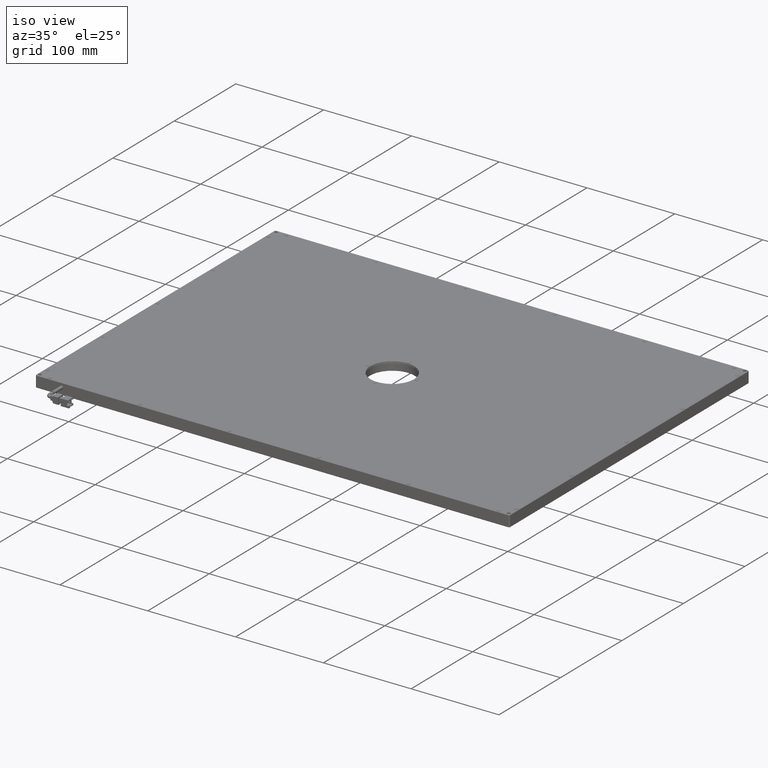
[diagram: clean part render]
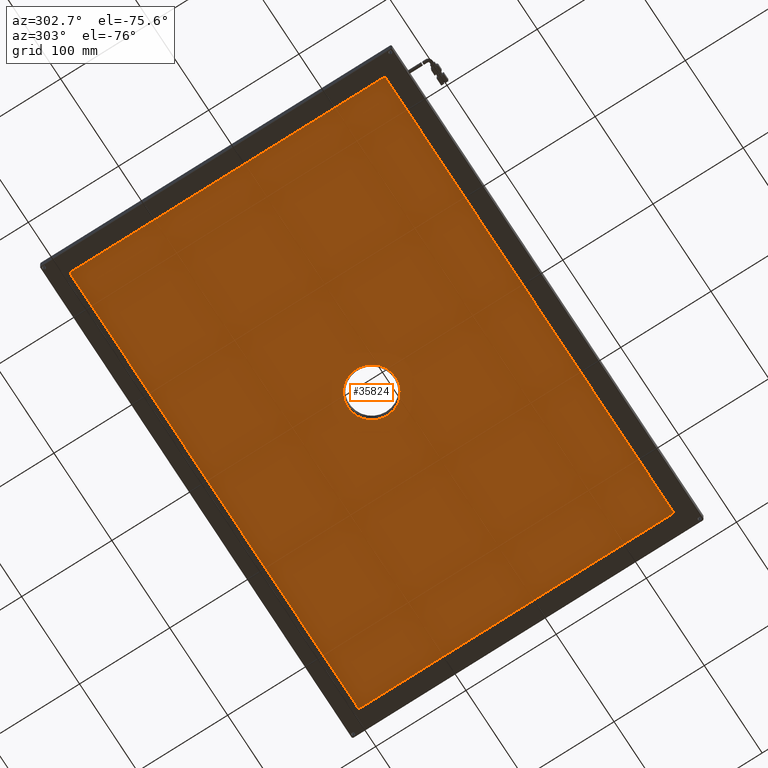
[diagram: tour spotlight — one face highlighted and labeled with its STEP entity id]
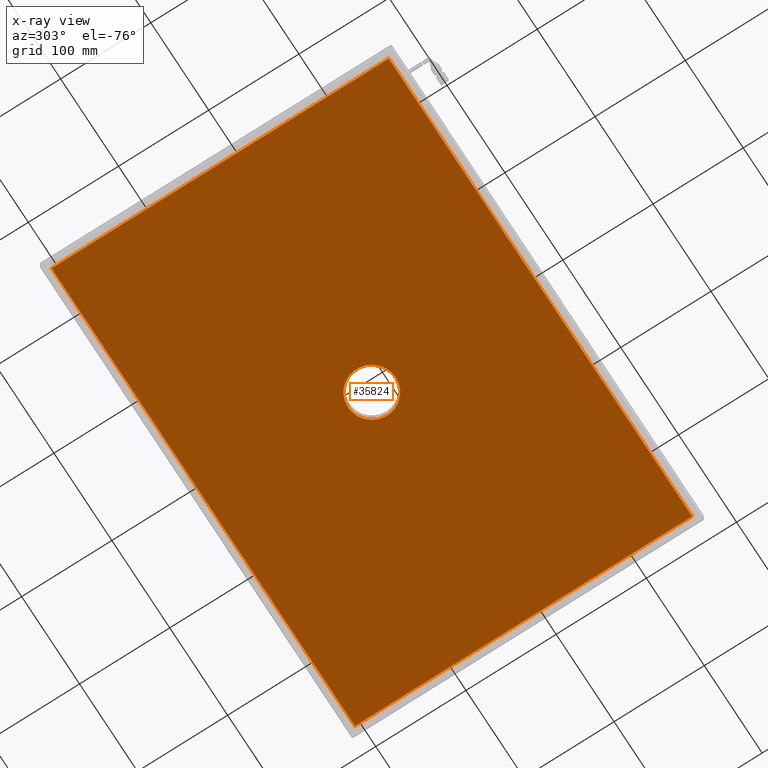
[diagram: x-ray of the same camera — body ghosted, this tour face saturated]
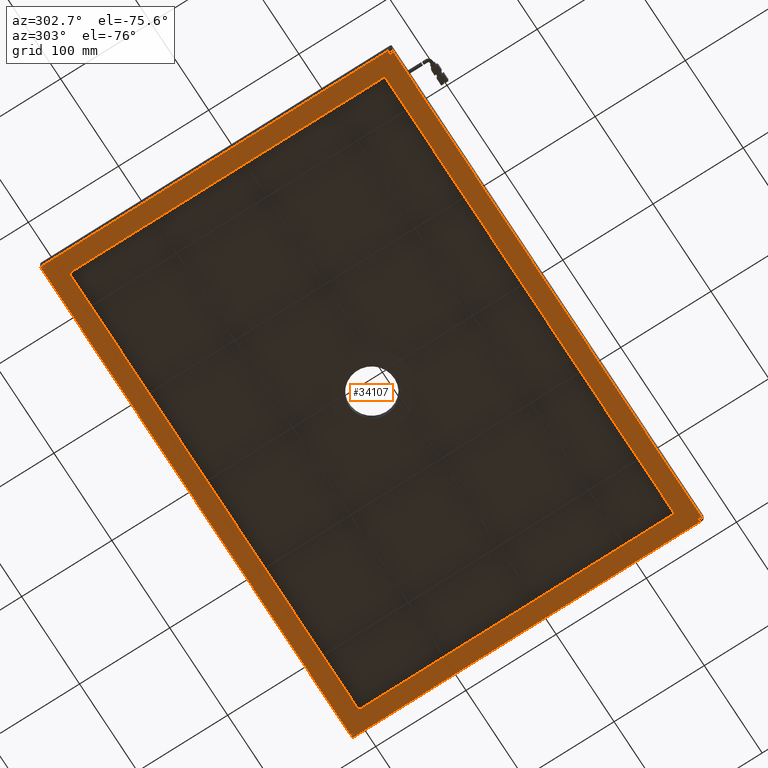
[diagram: tour spotlight — one face highlighted and labeled with its STEP entity id]
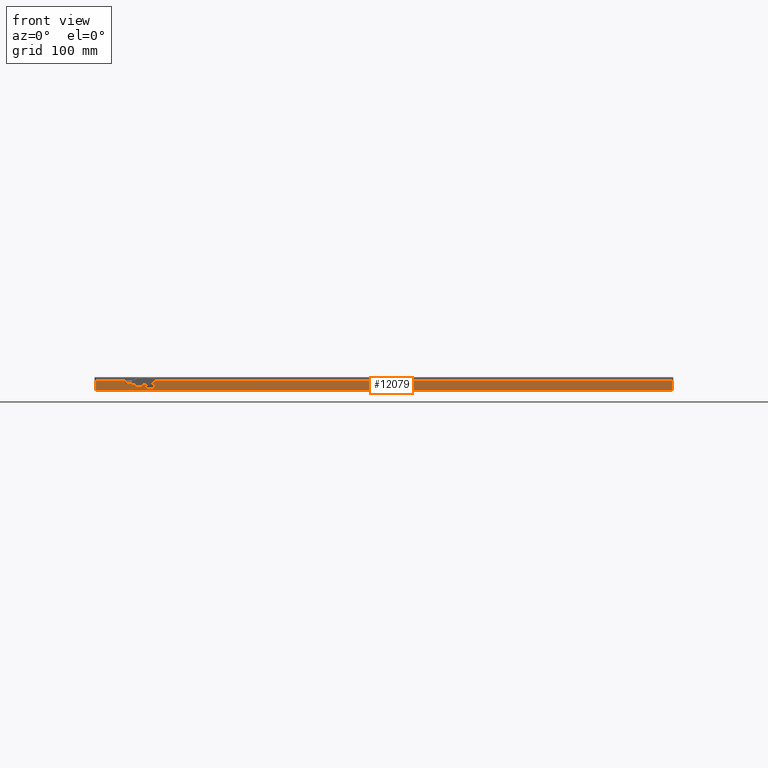
[diagram: tour spotlight — one face highlighted and labeled with its STEP entity id]
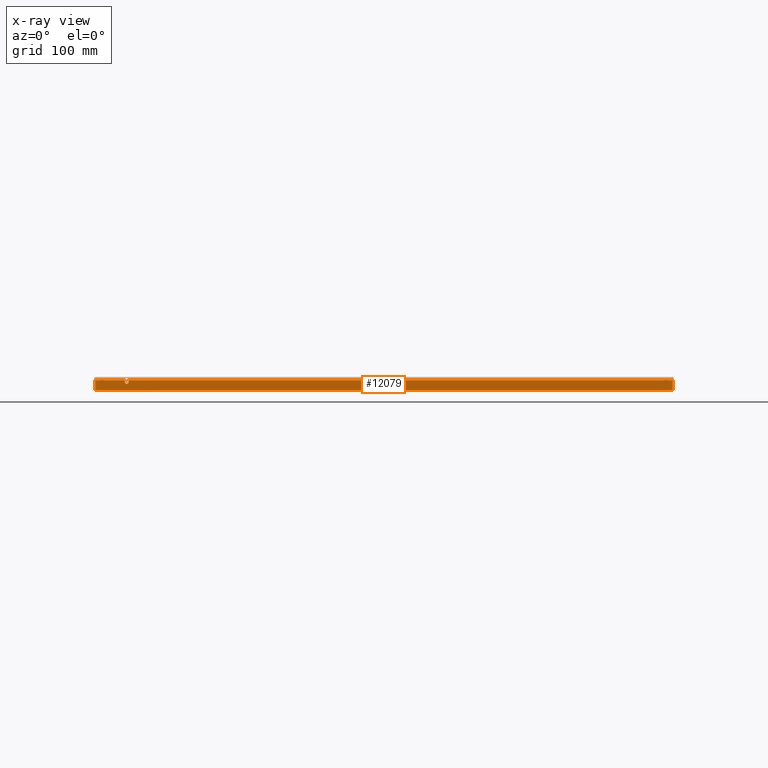
[diagram: x-ray of the same camera — body ghosted, this tour face saturated]
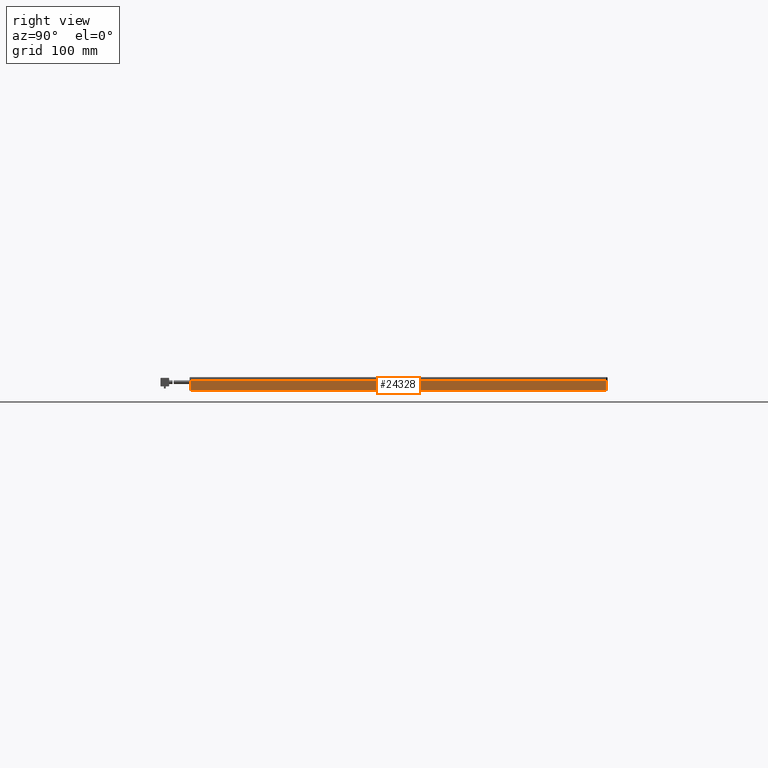
[diagram: tour spotlight — one face highlighted and labeled with its STEP entity id]
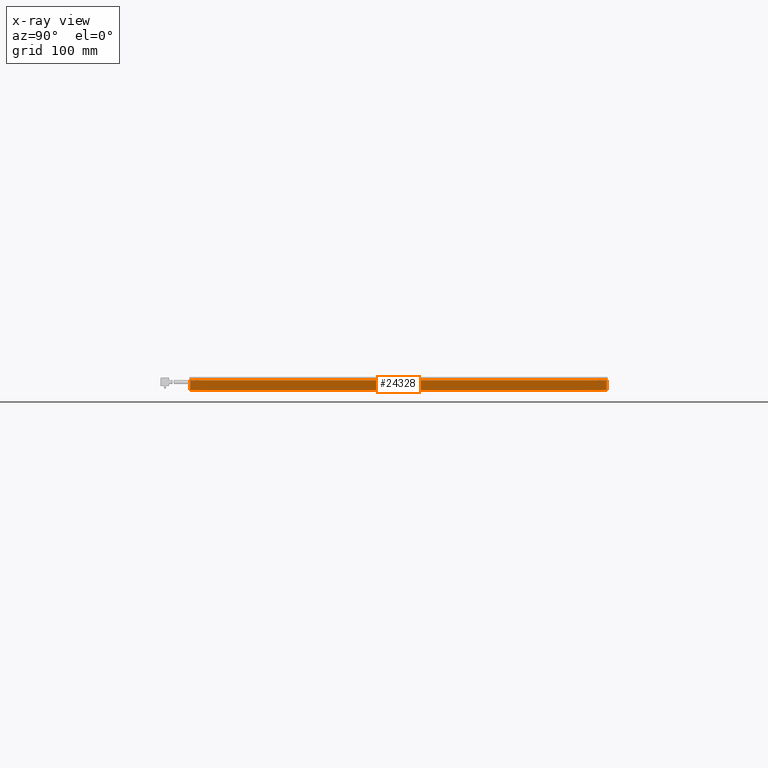
[diagram: x-ray of the same camera — body ghosted, this tour face saturated]
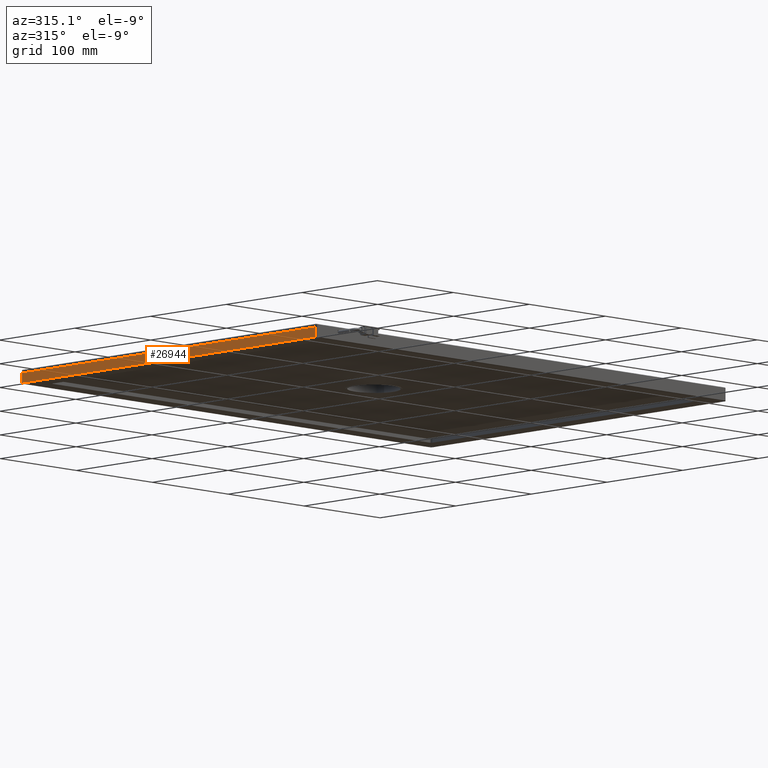
[diagram: tour spotlight — one face highlighted and labeled with its STEP entity id]
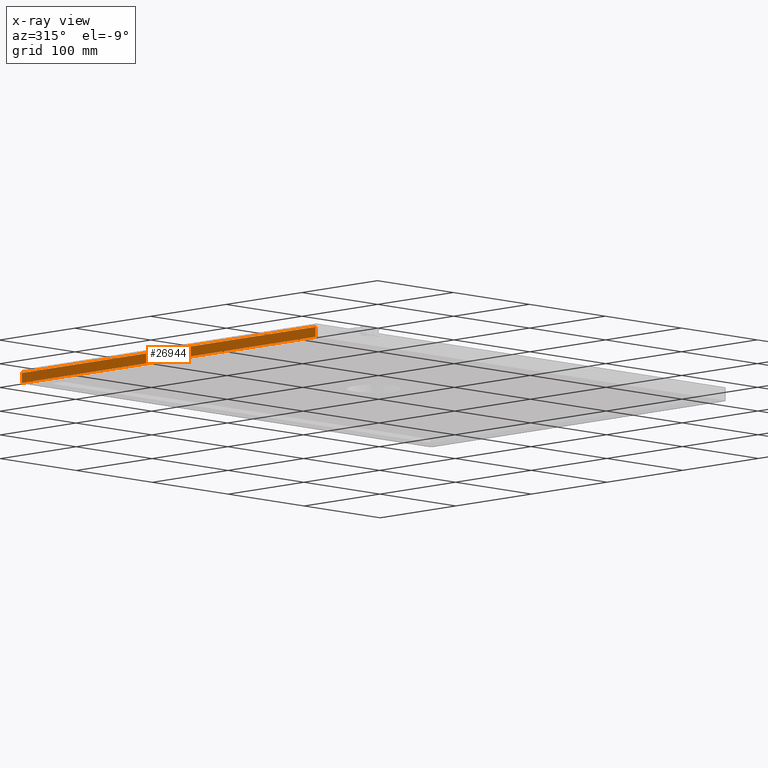
[diagram: x-ray of the same camera — body ghosted, this tour face saturated]
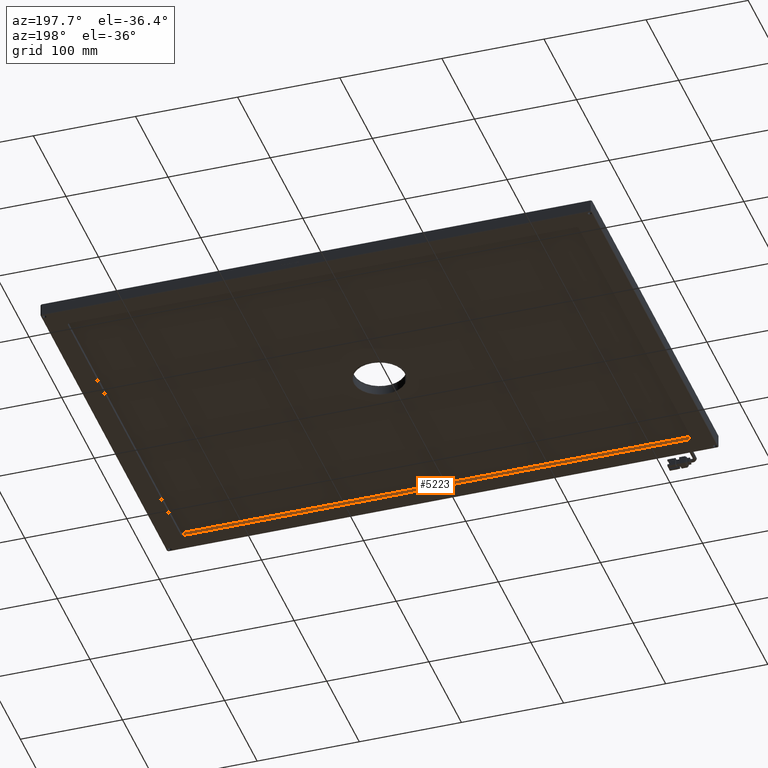
[diagram: tour spotlight — one face highlighted and labeled with its STEP entity id]
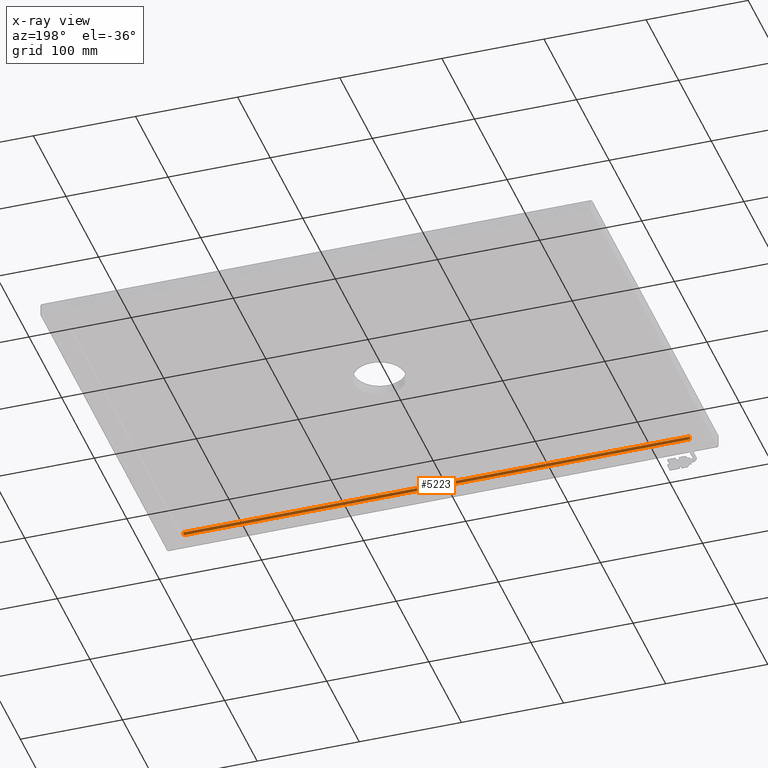
[diagram: x-ray of the same camera — body ghosted, this tour face saturated]
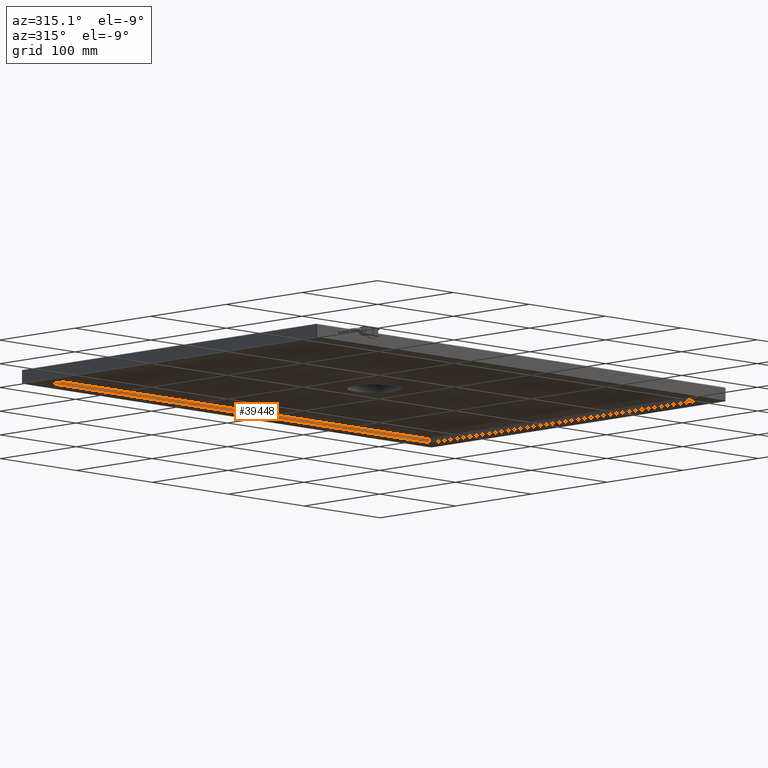
[diagram: tour spotlight — one face highlighted and labeled with its STEP entity id]
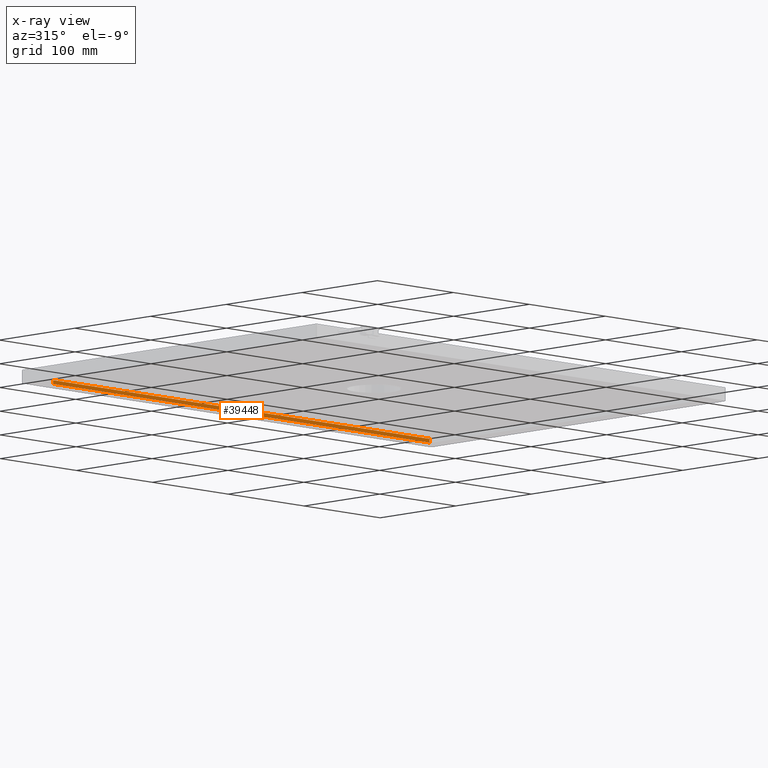
[diagram: x-ray of the same camera — body ghosted, this tour face saturated]
A machine part: a face-by-face anatomy tour. The part has 987 B-rep faces; the first image is the clean iso view, then the 7 largest visible faces are spotlighted one at a time (largest first), each with its STEP entity span.

Face 1 — auxiliary view, entity #35824. An x-ray twin of the same camera follows (body ghosted, this face saturated) — the face is partly hidden behind the body. In plain terms, the highlighted planar face has unit normal (0, 0, 1).
Definition (entity closure, byte-faithful):
#74 = DIRECTION ( 'NONE',  ( -6.546126324440780700E-017, -1.000000000000000000, 0.0000000000000000000 ) ) ;
#566 = PLANE ( 'NONE',  #31696 ) ;
#1430 = DIRECTION ( 'NONE',  ( 8.635563760980394900E-017, -1.000000000000000000, 1.240931981788380900E-018 ) ) ;
#2095 = VERTEX_POINT ( 'NONE', #13494 ) ;
#3767 = EDGE_CURVE ( 'NONE', #13105, #26332, #21936, .T. ) ;
#3987 = DIRECTION ( 'NONE',  ( 6.206990044168756900E-017, 1.000000000000000000, -1.240931981788380900E-018 ) ) ;
#4375 = ORIENTED_EDGE ( 'NONE', *, *, #3767, .T. ) ;
#4463 = AXIS2_PLACEMENT_3D ( 'NONE', #25818, #36872, #74 ) ;
#4845 = CARTESIAN_POINT ( 'NONE',  ( 13.94095595126540300, -5.787722586691565100, 3.500000000019098900 ) ) ;
#9698 = ORIENTED_EDGE ( 'NONE', *, *, #15598, .T. ) ;
#9917 = VERTEX_POINT ( 'NONE', #28113 ) ;
#10615 = VECTOR ( 'NONE', #1430, 1000.000000000000000 ) ;
#11948 = VECTOR ( 'NONE', #25629, 1000.000000000000000 ) ;
#12547 = EDGE_LOOP ( 'NONE', ( #9698, #18341, #23312, #37896 ) ) ;
#13021 = CARTESIAN_POINT ( 'NONE',  ( 13.94095595126540300, 47.21227741330844200, 3.500000000019098900 ) ) ;
#13105 = VERTEX_POINT ( 'NONE', #4845 ) ;
#13494 = CARTESIAN_POINT ( 'NONE',  ( -248.0590440487346200, -166.2877225866915600, 3.500000000019100700 ) ) ;
#13706 = CARTESIAN_POINT ( 'NONE',  ( -248.0590440487346200, -166.2877225866915600, 3.500000000019100700 ) ) ;
#14075 = ORIENTED_EDGE ( 'NONE', *, *, #39587, .T. ) ;
#14134 = CARTESIAN_POINT ( 'NONE',  ( 275.9409559512653200, 207.7122774133083900, 3.500000000019098500 ) ) ;
#15598 = EDGE_CURVE ( 'NONE', #2095, #19692, #33110, .T. ) ;
#16550 = VECTOR ( 'NONE', #31618, 1000.000000000000000 ) ;
#18232 = VERTEX_POINT ( 'NONE', #20219 ) ;
#18271 = AXIS2_PLACEMENT_3D ( 'NONE', #27060, #36580, #40317 ) ;
#18341 = ORIENTED_EDGE ( 'NONE', *, *, #20856, .T. ) ;
#18506 = CARTESIAN_POINT ( 'NONE',  ( 275.9409559512653200, 207.7122774133083900, 3.500000000019098500 ) ) ;
#19339 = LINE ( 'NONE', #14134, #10615 ) ;
#19692 = VERTEX_POINT ( 'NONE', #37949 ) ;
#20219 = CARTESIAN_POINT ( 'NONE',  ( 275.9409559512654400, 207.7122774133083900, 3.500000000019098900 ) ) ;
#20316 = DIRECTION ( 'NONE',  ( 2.692764026828979900E-033, 1.240931981788380900E-018, 1.000000000000000000 ) ) ;
#20856 = EDGE_CURVE ( 'NONE', #19692, #18232, #39166, .T. ) ;
#21239 = FACE_BOUND ( 'NONE', #41870, .T. ) ;
#21871 = CARTESIAN_POINT ( 'NONE',  ( 275.9409559512654400, -166.2877225866916100, 3.500000000019101200 ) ) ;
#21936 = CIRCLE ( 'NONE', #18271, 26.50000000000000400 ) ;
#23312 = ORIENTED_EDGE ( 'NONE', *, *, #26581, .T. ) ;
#25179 = CIRCLE ( 'NONE', #4463, 26.50000000000000400 ) ;
#25629 = DIRECTION ( 'NONE',  ( 1.000000000000000000, -6.206990044168760600E-017, -2.615739502264469000E-033 ) ) ;
#25818 = CARTESIAN_POINT ( 'NONE',  ( 13.94095595126540500, 20.71227741330843800, 3.500000000019098900 ) ) ;
#26332 = VERTEX_POINT ( 'NONE', #13021 ) ;
#26581 = EDGE_CURVE ( 'NONE', #18232, #9917, #19339, .T. ) ;
#27060 = CARTESIAN_POINT ( 'NONE',  ( 13.94095595126540500, 20.71227741330843800, 3.500000000019098900 ) ) ;
#28053 = EDGE_CURVE ( 'NONE', #9917, #2095, #34525, .T. ) ;
#28113 = CARTESIAN_POINT ( 'NONE',  ( 275.9409559512654400, -166.2877225866916100, 3.500000000019100300 ) ) ;
#29425 = FACE_OUTER_BOUND ( 'NONE', #12547, .T. ) ;
#31618 = DIRECTION ( 'NONE',  ( -1.000000000000000000, 6.206990044168760600E-017, 2.615739502264469000E-033 ) ) ;
#31696 = AXIS2_PLACEMENT_3D ( 'NONE', #13706, #20316, #3987 ) ;
#33110 = LINE ( 'NONE', #42238, #37714 ) ;
#34525 = LINE ( 'NONE', #21871, #16550 ) ;
#35824 = ADVANCED_FACE ( 'NONE', ( #21239, #29425 ), #566, .F. ) ;
#36580 = DIRECTION ( 'NONE',  ( 2.692764026828979900E-033, 1.240931981788380900E-018, 1.000000000000000000 ) ) ;
#36872 = DIRECTION ( 'NONE',  ( 2.692764026828979900E-033, 1.240931981788380900E-018, 1.000000000000000000 ) ) ;
#37714 = VECTOR ( 'NONE', #38889, 1000.000000000000000 ) ;
#37896 = ORIENTED_EDGE ( 'NONE', *, *, #28053, .T. ) ;
#37949 = CARTESIAN_POINT ( 'NONE',  ( -248.0590440487346500, 207.7122774133084400, 3.500000000019099400 ) ) ;
#38889 = DIRECTION ( 'NONE',  ( -8.635563760980394900E-017, 1.000000000000000000, -1.240931981788380900E-018 ) ) ;
#39166 = LINE ( 'NONE', #18506, #11948 ) ;
#39587 = EDGE_CURVE ( 'NONE', #26332, #13105, #25179, .T. ) ;
#40317 = DIRECTION ( 'NONE',  ( -6.546126324440780700E-017, -1.000000000000000000, 0.0000000000000000000 ) ) ;
#41870 = EDGE_LOOP ( 'NONE', ( #4375, #14075 ) ) ;
#42238 = CARTESIAN_POINT ( 'NONE',  ( -248.0590440487346500, 207.7122774133084400, 3.500000000019100300 ) ) ;

Face 2 — auxiliary view, entity #34107. In plain terms, the highlighted planar face has unit normal (0, 0, -1).
Definition (entity closure, byte-faithful):
#136 = EDGE_CURVE ( 'NONE', #26082, #21890, #33243, .T. ) ;
#373 = AXIS2_PLACEMENT_3D ( 'NONE', #24448, #8418, #4688 ) ;
#414 = VERTEX_POINT ( 'NONE', #5440 ) ;
#505 = VERTEX_POINT ( 'NONE', #15899 ) ;
#1027 = DIRECTION ( 'NONE',  ( 0.0000000000000000000, 1.000000000000000000, 0.0000000000000000000 ) ) ;
#1041 = VERTEX_POINT ( 'NONE', #38152 ) ;
#1350 = EDGE_LOOP ( 'NONE', ( #35131, #40702 ) ) ;
#1671 = VERTEX_POINT ( 'NONE', #3965 ) ;
#2520 = EDGE_CURVE ( 'NONE', #1041, #33897, #24569, .T. ) ;
#2630 = CARTESIAN_POINT ( 'NONE',  ( -251.3090440487347300, 212.7122774133083900, 1.909930547050464600E-011 ) ) ;
#2809 = VECTOR ( 'NONE', #27487, 1000.000000000000100 ) ;
#2817 = CIRCLE ( 'NONE', #29974, 1.749999999999973800 ) ;
#3152 = ORIENTED_EDGE ( 'NONE', *, *, #11017, .T. ) ;
#3345 = EDGE_LOOP ( 'NONE', ( #42387, #33017, #37947, #17587, #30979, #33333, #28123, #13462 ) ) ;
#3895 = AXIS2_PLACEMENT_3D ( 'NONE', #23231, #16930, #26386 ) ;
#3965 = CARTESIAN_POINT ( 'NONE',  ( 279.1909559512653200, 212.7122774133083900, 1.909930547050464600E-011 ) ) ;
#4200 = EDGE_CURVE ( 'NONE', #414, #28517, #19289, .T. ) ;
#4258 = VERTEX_POINT ( 'NONE', #24147 ) ;
#4298 = CARTESIAN_POINT ( 'NONE',  ( 283.4409559512654900, -173.0806158055050900, 1.909930547050464600E-011 ) ) ;
#4688 = DIRECTION ( 'NONE',  ( 1.000000000000000000, 0.0000000000000000000, 0.0000000000000000000 ) ) ;
#4745 = CIRCLE ( 'NONE', #30536, 2.000000000000001800 ) ;
#4793 = VERTEX_POINT ( 'NONE', #23692 ) ;
#4958 = DIRECTION ( 'NONE',  ( 0.0000000000000000000, 0.0000000000000000000, 1.000000000000000000 ) ) ;
#4975 = DIRECTION ( 'NONE',  ( 1.000000000000000000, 0.0000000000000000000, 0.0000000000000000000 ) ) ;
#5440 = CARTESIAN_POINT ( 'NONE',  ( -236.0590440487346800, 193.7122774133084400, 1.909930547050464600E-011 ) ) ;
#5469 = DIRECTION ( 'NONE',  ( -1.000000000000000000, 0.0000000000000000000, -0.0000000000000000000 ) ) ;
#5720 = CARTESIAN_POINT ( 'NONE',  ( 282.7338491700788300, 215.2122774133085000, 1.909930547050464600E-011 ) ) ;
#5872 = DIRECTION ( 'NONE',  ( 1.000000000000000000, 0.0000000000000000000, 0.0000000000000000000 ) ) ;
#6016 = CIRCLE ( 'NONE', #16108, 1.750000000000029300 ) ;
#6037 = DIRECTION ( 'NONE',  ( 1.000000000000000000, 0.0000000000000000000, 0.0000000000000000000 ) ) ;
#6069 = ORIENTED_EDGE ( 'NONE', *, *, #38696, .T. ) ;
#7440 = CARTESIAN_POINT ( 'NONE',  ( 263.9409559512653200, 215.7122774133083900, 1.909930547050464600E-011 ) ) ;
#7488 = EDGE_CURVE ( 'NONE', #18850, #24149, #2817, .T. ) ;
#7773 = CARTESIAN_POINT ( 'NONE',  ( -253.0590440487347100, 212.7122774133083900, 1.909930547050464600E-011 ) ) ;
#7865 = CIRCLE ( 'NONE', #29770, 1.749999999999973800 ) ;
#8020 = EDGE_CURVE ( 'NONE', #40762, #1041, #4745, .T. ) ;
#8418 = DIRECTION ( 'NONE',  ( -0.0000000000000000000, -0.0000000000000000000, 1.000000000000000000 ) ) ;
#8437 = VECTOR ( 'NONE', #38436, 1000.000000000000000 ) ;
#8611 = CARTESIAN_POINT ( 'NONE',  ( -256.0590440487347900, -173.7877225866917900, 1.909930547050464600E-011 ) ) ;
#8671 = CIRCLE ( 'NONE', #17295, 1.749999999999973800 ) ;
#9055 = VECTOR ( 'NONE', #37470, 1000.000000000000000 ) ;
#9212 = VERTEX_POINT ( 'NONE', #21428 ) ;
#9302 = DIRECTION ( 'NONE',  ( 0.7071067811865752200, -0.7071067811865197100, 0.0000000000000000000 ) ) ;
#9473 = LINE ( 'NONE', #22644, #8437 ) ;
#9603 = CARTESIAN_POINT ( 'NONE',  ( -253.0590440487347100, 212.7122774133083900, 1.909930547050464600E-011 ) ) ;
#9629 = EDGE_LOOP ( 'NONE', ( #23675, #6069 ) ) ;
#10253 = CARTESIAN_POINT ( 'NONE',  ( 279.1909559512653200, -171.2877225866916100, 1.909930547050464600E-011 ) ) ;
#10610 = DIRECTION ( 'NONE',  ( -0.0000000000000000000, -1.000000000000000000, -0.0000000000000000000 ) ) ;
#10881 = PLANE ( 'NONE',  #38496 ) ;
#10972 = LINE ( 'NONE', #17524, #17637 ) ;
#11017 = EDGE_CURVE ( 'NONE', #11864, #505, #28171, .T. ) ;
#11609 = CARTESIAN_POINT ( 'NONE',  ( -255.5590440487349000, 214.5051706321218900, 1.911226398265815300E-011 ) ) ;
#11659 = CARTESIAN_POINT ( 'NONE',  ( -236.0590440487346500, -152.2877225866917600, 1.909930547050464600E-011 ) ) ;
#11864 = VERTEX_POINT ( 'NONE', #29877 ) ;
#12194 = ORIENTED_EDGE ( 'NONE', *, *, #34296, .T. ) ;
#12577 = ORIENTED_EDGE ( 'NONE', *, *, #23352, .T. ) ;
#12667 = LINE ( 'NONE', #24959, #15235 ) ;
#13462 = ORIENTED_EDGE ( 'NONE', *, *, #17501, .T. ) ;
#14356 = FACE_BOUND ( 'NONE', #1350, .T. ) ;
#14427 = CARTESIAN_POINT ( 'NONE',  ( -254.8090440487346800, -171.2877225866916100, 1.909930547050464600E-011 ) ) ;
#14611 = DIRECTION ( 'NONE',  ( 0.0000000000000000000, 0.0000000000000000000, -1.000000000000000000 ) ) ;
#14778 = DIRECTION ( 'NONE',  ( 1.000000000000000000, -0.0000000000000000000, 0.0000000000000000000 ) ) ;
#15235 = VECTOR ( 'NONE', #41670, 1000.000000000000100 ) ;
#15860 = EDGE_CURVE ( 'NONE', #21890, #11864, #39237, .T. ) ;
#15899 = CARTESIAN_POINT ( 'NONE',  ( -254.8519372675482900, -173.7877225866917300, 1.909932258988240500E-011 ) ) ;
#16067 = DIRECTION ( 'NONE',  ( -0.0000000000000000000, -0.0000000000000000000, 1.000000000000000000 ) ) ;
#16108 = AXIS2_PLACEMENT_3D ( 'NONE', #18884, #38386, #5872 ) ;
#16560 = CARTESIAN_POINT ( 'NONE',  ( 282.6909559512653800, -171.2877225866916100, 1.909930547050464600E-011 ) ) ;
#16713 = DIRECTION ( 'NONE',  ( 1.000000000000000000, 0.0000000000000000000, 0.0000000000000000000 ) ) ;
#16918 = FACE_BOUND ( 'NONE', #26576, .T. ) ;
#16930 = DIRECTION ( 'NONE',  ( 0.0000000000000000000, 0.0000000000000000000, 1.000000000000000000 ) ) ;
#16940 = CARTESIAN_POINT ( 'NONE',  ( -254.8090440487346800, 212.7122774133083900, 1.909930547050464600E-011 ) ) ;
#17003 = CIRCLE ( 'NONE', #3895, 2.000000000000001800 ) ;
#17061 = CARTESIAN_POINT ( 'NONE',  ( 283.4409559512654900, 215.7122774133083900, 1.909930547050464600E-011 ) ) ;
#17295 = AXIS2_PLACEMENT_3D ( 'NONE', #9603, #29084, #35653 ) ;
#17327 = CARTESIAN_POINT ( 'NONE',  ( -234.0590440487346800, 195.7122774133083900, 1.909930547050464600E-011 ) ) ;
#17501 = EDGE_CURVE ( 'NONE', #28517, #42500, #17510, .T. ) ;
#17510 = CIRCLE ( 'NONE', #26409, 2.000000000000001800 ) ;
#17524 = CARTESIAN_POINT ( 'NONE',  ( -256.0590440487347900, 195.7122774133083900, 1.909930547050464600E-011 ) ) ;
#17587 = ORIENTED_EDGE ( 'NONE', *, *, #28907, .T. ) ;
#17637 = VECTOR ( 'NONE', #40493, 1000.000000000000000 ) ;
#17642 = VERTEX_POINT ( 'NONE', #10253 ) ;
#17771 = CARTESIAN_POINT ( 'NONE',  ( -256.0590440487347900, 215.7122774133083900, 1.909930547050464600E-011 ) ) ;
#17865 = DIRECTION ( 'NONE',  ( 1.000000000000000000, 0.0000000000000000000, 0.0000000000000000000 ) ) ;
#18120 = CARTESIAN_POINT ( 'NONE',  ( -254.8519372675482900, 215.2122774133085000, 1.911159083637162200E-011 ) ) ;
#18285 = EDGE_CURVE ( 'NONE', #39338, #41054, #18834, .T. ) ;
#18438 = VECTOR ( 'NONE', #5469, 1000.000000000000000 ) ;
#18450 = DIRECTION ( 'NONE',  ( -0.0000000000000000000, -0.0000000000000000000, 1.000000000000000000 ) ) ;
#18834 = LINE ( 'NONE', #21200, #29118 ) ;
#18850 = VERTEX_POINT ( 'NONE', #16940 ) ;
#18858 = ORIENTED_EDGE ( 'NONE', *, *, #25553, .T. ) ;
#18884 = CARTESIAN_POINT ( 'NONE',  ( 280.9409559512653200, -171.2877225866916100, 1.909930547050464600E-011 ) ) ;
#19100 = CIRCLE ( 'NONE', #35985, 2.000000000000001800 ) ;
#19110 = EDGE_CURVE ( 'NONE', #42500, #40762, #9473, .T. ) ;
#19232 = CARTESIAN_POINT ( 'NONE',  ( 263.9409559512653200, 193.7122774133083900, 1.909930547050464600E-011 ) ) ;
#19289 = LINE ( 'NONE', #40260, #9055 ) ;
#19512 = FACE_BOUND ( 'NONE', #9629, .T. ) ;
#19580 = CARTESIAN_POINT ( 'NONE',  ( -234.0590440487346800, 193.7122774133084400, 1.909930547050464600E-011 ) ) ;
#19660 = DIRECTION ( 'NONE',  ( 1.000000000000000000, 0.0000000000000000000, 0.0000000000000000000 ) ) ;
#19961 = VECTOR ( 'NONE', #9302, 1000.000000000000100 ) ;
#20486 = DIRECTION ( 'NONE',  ( -0.0000000000000000000, -0.0000000000000000000, 1.000000000000000000 ) ) ;
#20620 = VECTOR ( 'NONE', #36140, 1000.000000000000100 ) ;
#21041 = DIRECTION ( 'NONE',  ( -1.000000000000000000, 0.0000000000000000000, -0.0000000000000000000 ) ) ;
#21200 = CARTESIAN_POINT ( 'NONE',  ( -256.0590440487347900, 215.2122774133085000, 1.909930547050464600E-011 ) ) ;
#21428 = CARTESIAN_POINT ( 'NONE',  ( 261.9409559512653200, 195.7122774133083900, 1.909930547050464600E-011 ) ) ;
#21890 = VERTEX_POINT ( 'NONE', #30948 ) ;
#22048 = FACE_BOUND ( 'NONE', #3345, .T. ) ;
#22113 = EDGE_CURVE ( 'NONE', #24149, #18850, #8671, .T. ) ;
#22488 = VERTEX_POINT ( 'NONE', #14427 ) ;
#22574 = DIRECTION ( 'NONE',  ( 1.000000000000000000, 0.0000000000000000000, 0.0000000000000000000 ) ) ;
#22607 = LINE ( 'NONE', #31425, #25685 ) ;
#22644 = CARTESIAN_POINT ( 'NONE',  ( -256.0590440487347900, -154.2877225866917600, 1.909930547050464600E-011 ) ) ;
#23035 = LINE ( 'NONE', #5720, #19961 ) ;
#23231 = CARTESIAN_POINT ( 'NONE',  ( 261.9409559512653200, 193.7122774133083900, 1.909930547050464600E-011 ) ) ;
#23352 = EDGE_CURVE ( 'NONE', #1671, #4258, #33158, .T. ) ;
#23675 = ORIENTED_EDGE ( 'NONE', *, *, #41191, .T. ) ;
#23692 = CARTESIAN_POINT ( 'NONE',  ( -255.5590440487348800, -173.0806158055051800, 1.910307885936629800E-011 ) ) ;
#24147 = CARTESIAN_POINT ( 'NONE',  ( 282.6909559512653800, 212.7122774133083900, 1.909930547050464600E-011 ) ) ;
#24149 = VERTEX_POINT ( 'NONE', #2630 ) ;
#24447 = EDGE_CURVE ( 'NONE', #22488, #41877, #7865, .T. ) ;
#24448 = CARTESIAN_POINT ( 'NONE',  ( 280.9409559512653200, -171.2877225866916100, 1.909930547050464600E-011 ) ) ;
#24569 = LINE ( 'NONE', #7440, #36416 ) ;
#24587 = CARTESIAN_POINT ( 'NONE',  ( -253.0590440487347100, -171.2877225866916100, 1.909930547050464600E-011 ) ) ;
#24615 = CARTESIAN_POINT ( 'NONE',  ( 282.7338491700788300, 215.2122774133085000, 1.908872950648463300E-011 ) ) ;
#24959 = CARTESIAN_POINT ( 'NONE',  ( -255.5590440487349600, 214.5051706321218300, 1.909930547050464600E-011 ) ) ;
#25085 = CARTESIAN_POINT ( 'NONE',  ( 261.9409559512653200, -154.2877225866916700, 1.909930547050464600E-011 ) ) ;
#25252 = CIRCLE ( 'NONE', #38177, 1.749999999999973800 ) ;
#25309 = AXIS2_PLACEMENT_3D ( 'NONE', #39331, #32830, #19660 ) ;
#25553 = EDGE_CURVE ( 'NONE', #4793, #35477, #22607, .T. ) ;
#25685 = VECTOR ( 'NONE', #27997, 1000.000000000000000 ) ;
#26082 = VERTEX_POINT ( 'NONE', #41068 ) ;
#26386 = DIRECTION ( 'NONE',  ( 1.000000000000000000, 0.0000000000000000000, 0.0000000000000000000 ) ) ;
#26409 = AXIS2_PLACEMENT_3D ( 'NONE', #39527, #35611, #22574 ) ;
#26576 = EDGE_LOOP ( 'NONE', ( #37602, #27528 ) ) ;
#27391 = DIRECTION ( 'NONE',  ( -0.0000000000000000000, -0.0000000000000000000, 1.000000000000000000 ) ) ;
#27487 = DIRECTION ( 'NONE',  ( -0.7071067811865474600, -0.7071067811865474600, 0.0000000000000000000 ) ) ;
#27528 = ORIENTED_EDGE ( 'NONE', *, *, #7488, .T. ) ;
#27997 = DIRECTION ( 'NONE',  ( 0.0000000000000000000, 1.000000000000000000, 0.0000000000000000000 ) ) ;
#28070 = EDGE_CURVE ( 'NONE', #41877, #22488, #25252, .T. ) ;
#28123 = ORIENTED_EDGE ( 'NONE', *, *, #4200, .T. ) ;
#28171 = LINE ( 'NONE', #8611, #18438 ) ;
#28231 = EDGE_CURVE ( 'NONE', #29449, #414, #19100, .T. ) ;
#28517 = VERTEX_POINT ( 'NONE', #11659 ) ;
#28907 = EDGE_CURVE ( 'NONE', #33897, #9212, #17003, .T. ) ;
#29084 = DIRECTION ( 'NONE',  ( -0.0000000000000000000, -0.0000000000000000000, 1.000000000000000000 ) ) ;
#29118 = VECTOR ( 'NONE', #14778, 1000.000000000000000 ) ;
#29449 = VERTEX_POINT ( 'NONE', #17327 ) ;
#29722 = VERTEX_POINT ( 'NONE', #16560 ) ;
#29770 = AXIS2_PLACEMENT_3D ( 'NONE', #42066, #16067, #6037 ) ;
#29877 = CARTESIAN_POINT ( 'NONE',  ( 282.7338491700788300, -173.7877225866917900, 1.909243433923651900E-011 ) ) ;
#29974 = AXIS2_PLACEMENT_3D ( 'NONE', #7773, #27391, #40222 ) ;
#30536 = AXIS2_PLACEMENT_3D ( 'NONE', #31318, #4958, #17865 ) ;
#30633 = ORIENTED_EDGE ( 'NONE', *, *, #136, .T. ) ;
#30948 = CARTESIAN_POINT ( 'NONE',  ( 283.4409559512656100, -173.0806158055050900, 1.909060974090873000E-011 ) ) ;
#30979 = ORIENTED_EDGE ( 'NONE', *, *, #42186, .T. ) ;
#31318 = CARTESIAN_POINT ( 'NONE',  ( 261.9409559512653200, -152.2877225866915900, 1.909930547050464600E-011 ) ) ;
#31425 = CARTESIAN_POINT ( 'NONE',  ( -255.5590440487348200, 215.7122774133083900, 1.909930547050464600E-011 ) ) ;
#31438 = CIRCLE ( 'NONE', #373, 1.750000000000029300 ) ;
#32025 = CARTESIAN_POINT ( 'NONE',  ( -251.3090440487347300, -171.2877225866916100, 1.909930547050464600E-011 ) ) ;
#32255 = CARTESIAN_POINT ( 'NONE',  ( -234.0590440487346200, -154.2877225866917600, 1.909930547050464600E-011 ) ) ;
#32445 = ORIENTED_EDGE ( 'NONE', *, *, #15860, .T. ) ;
#32830 = DIRECTION ( 'NONE',  ( -0.0000000000000000000, -0.0000000000000000000, 1.000000000000000000 ) ) ;
#33017 = ORIENTED_EDGE ( 'NONE', *, *, #8020, .T. ) ;
#33027 = ORIENTED_EDGE ( 'NONE', *, *, #33751, .T. ) ;
#33158 = CIRCLE ( 'NONE', #25309, 1.750000000000029300 ) ;
#33243 = LINE ( 'NONE', #17061, #38406 ) ;
#33333 = ORIENTED_EDGE ( 'NONE', *, *, #28231, .T. ) ;
#33751 = EDGE_CURVE ( 'NONE', #35477, #39338, #12667, .T. ) ;
#33897 = VERTEX_POINT ( 'NONE', #19232 ) ;
#34104 = EDGE_CURVE ( 'NONE', #4258, #1671, #40567, .T. ) ;
#34107 = ADVANCED_FACE ( 'NONE', ( #22048, #41624, #19512, #16918, #14356, #36426 ), #10881, .T. ) ;
#34296 = EDGE_CURVE ( 'NONE', #41054, #26082, #23035, .T. ) ;
#34738 = ORIENTED_EDGE ( 'NONE', *, *, #34104, .T. ) ;
#35131 = ORIENTED_EDGE ( 'NONE', *, *, #28070, .T. ) ;
#35477 = VERTEX_POINT ( 'NONE', #11609 ) ;
#35611 = DIRECTION ( 'NONE',  ( 0.0000000000000000000, 0.0000000000000000000, 1.000000000000000000 ) ) ;
#35653 = DIRECTION ( 'NONE',  ( 1.000000000000000000, 0.0000000000000000000, 0.0000000000000000000 ) ) ;
#35985 = AXIS2_PLACEMENT_3D ( 'NONE', #19580, #39665, #16713 ) ;
#36140 = DIRECTION ( 'NONE',  ( -0.7071067811865474600, 0.7071067811865474600, 0.0000000000000000000 ) ) ;
#36305 = AXIS2_PLACEMENT_3D ( 'NONE', #40740, #20486, #36969 ) ;
#36416 = VECTOR ( 'NONE', #1027, 1000.000000000000000 ) ;
#36426 = FACE_OUTER_BOUND ( 'NONE', #38925, .T. ) ;
#36969 = DIRECTION ( 'NONE',  ( 1.000000000000000000, 0.0000000000000000000, 0.0000000000000000000 ) ) ;
#37307 = ORIENTED_EDGE ( 'NONE', *, *, #42565, .T. ) ;
#37470 = DIRECTION ( 'NONE',  ( -0.0000000000000000000, -1.000000000000000000, -0.0000000000000000000 ) ) ;
#37602 = ORIENTED_EDGE ( 'NONE', *, *, #22113, .T. ) ;
#37947 = ORIENTED_EDGE ( 'NONE', *, *, #2520, .T. ) ;
#38152 = CARTESIAN_POINT ( 'NONE',  ( 263.9409559512653200, -152.2877225866915900, 1.909930547050464600E-011 ) ) ;
#38177 = AXIS2_PLACEMENT_3D ( 'NONE', #24587, #18450, #4975 ) ;
#38386 = DIRECTION ( 'NONE',  ( -0.0000000000000000000, -0.0000000000000000000, 1.000000000000000000 ) ) ;
#38406 = VECTOR ( 'NONE', #10610, 1000.000000000000000 ) ;
#38436 = DIRECTION ( 'NONE',  ( 1.000000000000000000, -0.0000000000000000000, 0.0000000000000000000 ) ) ;
#38496 = AXIS2_PLACEMENT_3D ( 'NONE', #17771, #14611, #21041 ) ;
#38696 = EDGE_CURVE ( 'NONE', #17642, #29722, #31438, .T. ) ;
#38925 = EDGE_LOOP ( 'NONE', ( #30633, #32445, #3152, #37307, #18858, #33027, #39334, #12194 ) ) ;
#39237 = LINE ( 'NONE', #4298, #2809 ) ;
#39331 = CARTESIAN_POINT ( 'NONE',  ( 280.9409559512653200, 212.7122774133083900, 1.909930547050464600E-011 ) ) ;
#39334 = ORIENTED_EDGE ( 'NONE', *, *, #18285, .T. ) ;
#39338 = VERTEX_POINT ( 'NONE', #18120 ) ;
#39527 = CARTESIAN_POINT ( 'NONE',  ( -234.0590440487346200, -152.2877225866917600, 1.909930547050464600E-011 ) ) ;
#39665 = DIRECTION ( 'NONE',  ( 0.0000000000000000000, 0.0000000000000000000, 1.000000000000000000 ) ) ;
#39731 = CARTESIAN_POINT ( 'NONE',  ( -254.8519372675482900, -173.7877225866917300, 1.909930547050464600E-011 ) ) ;
#40222 = DIRECTION ( 'NONE',  ( 1.000000000000000000, 0.0000000000000000000, 0.0000000000000000000 ) ) ;
#40260 = CARTESIAN_POINT ( 'NONE',  ( -236.0590440487346800, 215.7122774133083900, 1.909930547050464600E-011 ) ) ;
#40493 = DIRECTION ( 'NONE',  ( -1.000000000000000000, 0.0000000000000000000, -0.0000000000000000000 ) ) ;
#40567 = CIRCLE ( 'NONE', #36305, 1.750000000000029300 ) ;
#40702 = ORIENTED_EDGE ( 'NONE', *, *, #24447, .T. ) ;
#40740 = CARTESIAN_POINT ( 'NONE',  ( 280.9409559512653200, 212.7122774133083900, 1.909930547050464600E-011 ) ) ;
#40762 = VERTEX_POINT ( 'NONE', #25085 ) ;
#41054 = VERTEX_POINT ( 'NONE', #24615 ) ;
#41068 = CARTESIAN_POINT ( 'NONE',  ( 283.4409559512653800, 214.5051706321219500, 1.911824171459897300E-011 ) ) ;
#41191 = EDGE_CURVE ( 'NONE', #29722, #17642, #6016, .T. ) ;
#41213 = LINE ( 'NONE', #39731, #20620 ) ;
#41624 = FACE_BOUND ( 'NONE', #41656, .T. ) ;
#41656 = EDGE_LOOP ( 'NONE', ( #34738, #12577 ) ) ;
#41670 = DIRECTION ( 'NONE',  ( 0.7071067811865474600, 0.7071067811865474600, 0.0000000000000000000 ) ) ;
#41877 = VERTEX_POINT ( 'NONE', #32025 ) ;
#42066 = CARTESIAN_POINT ( 'NONE',  ( -253.0590440487347100, -171.2877225866916100, 1.909930547050464600E-011 ) ) ;
#42186 = EDGE_CURVE ( 'NONE', #9212, #29449, #10972, .T. ) ;
#42387 = ORIENTED_EDGE ( 'NONE', *, *, #19110, .T. ) ;
#42500 = VERTEX_POINT ( 'NONE', #32255 ) ;
#42565 = EDGE_CURVE ( 'NONE', #505, #4793, #41213, .T. ) ;

Face 3 — front view, entity #12079. An x-ray twin of the same camera follows (body ghosted, this face saturated) — the face is partly hidden behind the body. In plain terms, the highlighted planar face has unit normal (0, 1, 0).
Definition (entity closure, byte-faithful):
#2105 = ORIENTED_EDGE ( 'NONE', *, *, #19799, .F. ) ;
#2221 = DIRECTION ( 'NONE',  ( 0.0000000000000000000, 1.000000000000000000, 0.0000000000000000000 ) ) ;
#2359 = CARTESIAN_POINT ( 'NONE',  ( -255.0590440487348200, -174.2877225866916100, 10.00000000001909900 ) ) ;
#3556 = AXIS2_PLACEMENT_3D ( 'NONE', #18275, #2221, #28435 ) ;
#4293 = VECTOR ( 'NONE', #36395, 1000.000000000000000 ) ;
#5704 = ORIENTED_EDGE ( 'NONE', *, *, #27783, .F. ) ;
#6081 = EDGE_CURVE ( 'NONE', #25813, #18976, #14960, .T. ) ;
#8169 = VERTEX_POINT ( 'NONE', #22068 ) ;
#8224 = EDGE_CURVE ( 'NONE', #25687, #13547, #31354, .T. ) ;
#8589 = VECTOR ( 'NONE', #17633, 1000.000000000000000 ) ;
#9309 = CARTESIAN_POINT ( 'NONE',  ( -256.0590440487347900, -174.2877225866916100, 10.00000000001909900 ) ) ;
#9419 = LINE ( 'NONE', #21971, #42295 ) ;
#9556 = ORIENTED_EDGE ( 'NONE', *, *, #8224, .F. ) ;
#9986 = CARTESIAN_POINT ( 'NONE',  ( -227.8090440487347100, -174.2877225866916100, 10.00000000001909900 ) ) ;
#12079 = ADVANCED_FACE ( 'NONE', ( #31180 ), #15127, .F. ) ;
#12404 = VECTOR ( 'NONE', #22632, 1000.000000000000000 ) ;
#12422 = EDGE_CURVE ( 'NONE', #22189, #8169, #15285, .T. ) ;
#12508 = DIRECTION ( 'NONE',  ( 0.0000000000000000000, -0.0000000000000000000, 1.000000000000000000 ) ) ;
#13303 = LINE ( 'NONE', #21217, #16892 ) ;
#13547 = VERTEX_POINT ( 'NONE', #40485 ) ;
#13920 = CARTESIAN_POINT ( 'NONE',  ( -224.3090440487347100, -174.2877225866916100, 10.00000000001909900 ) ) ;
#14318 = CARTESIAN_POINT ( 'NONE',  ( -224.3090440487347100, -174.2877225866916100, 10.00000000001909900 ) ) ;
#14960 = LINE ( 'NONE', #2359, #35960 ) ;
#15127 = PLANE ( 'NONE',  #3556 ) ;
#15285 = CIRCLE ( 'NONE', #20872, 1.750000000000001600 ) ;
#16892 = VECTOR ( 'NONE', #34967, 1000.000000000000000 ) ;
#17247 = ORIENTED_EDGE ( 'NONE', *, *, #41388, .T. ) ;
#17633 = DIRECTION ( 'NONE',  ( 0.0000000000000000000, -0.0000000000000000000, 1.000000000000000000 ) ) ;
#18275 = CARTESIAN_POINT ( 'NONE',  ( -256.0590440487346800, -174.2877225866916100, 10.00000000001909900 ) ) ;
#18298 = LINE ( 'NONE', #9309, #32635 ) ;
#18304 = EDGE_CURVE ( 'NONE', #8169, #42170, #35765, .T. ) ;
#18976 = VERTEX_POINT ( 'NONE', #38292 ) ;
#19200 = ORIENTED_EDGE ( 'NONE', *, *, #21914, .F. ) ;
#19799 = EDGE_CURVE ( 'NONE', #27224, #22189, #40749, .T. ) ;
#20872 = AXIS2_PLACEMENT_3D ( 'NONE', #33836, #23919, #27070 ) ;
#21060 = ORIENTED_EDGE ( 'NONE', *, *, #18304, .F. ) ;
#21184 = LINE ( 'NONE', #36686, #4293 ) ;
#21217 = CARTESIAN_POINT ( 'NONE',  ( -256.0590440487346800, -174.2877225866916100, 0.5000000000189331900 ) ) ;
#21914 = EDGE_CURVE ( 'NONE', #13547, #25813, #13303, .T. ) ;
#21971 = CARTESIAN_POINT ( 'NONE',  ( -256.0590440487347900, -174.2877225866916100, 10.00000000001909900 ) ) ;
#22068 = CARTESIAN_POINT ( 'NONE',  ( -224.3090440487347100, -174.2877225866916100, 8.250000000019097600 ) ) ;
#22189 = VERTEX_POINT ( 'NONE', #32520 ) ;
#22449 = DIRECTION ( 'NONE',  ( 0.0000000000000000000, 0.0000000000000000000, -1.000000000000000000 ) ) ;
#22632 = DIRECTION ( 'NONE',  ( -0.0000000000000000000, 0.0000000000000000000, -1.000000000000000000 ) ) ;
#23919 = DIRECTION ( 'NONE',  ( -0.0000000000000000000, -1.000000000000000000, -0.0000000000000000000 ) ) ;
#24163 = EDGE_CURVE ( 'NONE', #25687, #42170, #9419, .T. ) ;
#25388 = CARTESIAN_POINT ( 'NONE',  ( 282.9409559512654400, -174.2877225866916100, 10.00000000001909900 ) ) ;
#25687 = VERTEX_POINT ( 'NONE', #25388 ) ;
#25813 = VERTEX_POINT ( 'NONE', #39910 ) ;
#25937 = AXIS2_PLACEMENT_3D ( 'NONE', #38679, #42168, #22449 ) ;
#27070 = DIRECTION ( 'NONE',  ( 0.0000000000000000000, 0.0000000000000000000, -1.000000000000000000 ) ) ;
#27224 = VERTEX_POINT ( 'NONE', #39627 ) ;
#27783 = EDGE_CURVE ( 'NONE', #36340, #27224, #21184, .T. ) ;
#28180 = EDGE_LOOP ( 'NONE', ( #21060, #37264, #2105, #5704, #17247, #34596, #19200, #9556, #37336 ) ) ;
#28435 = DIRECTION ( 'NONE',  ( 0.0000000000000000000, -0.0000000000000000000, 1.000000000000000000 ) ) ;
#29204 = DIRECTION ( 'NONE',  ( -1.000000000000000000, 0.0000000000000000000, -0.0000000000000000000 ) ) ;
#31180 = FACE_OUTER_BOUND ( 'NONE', #28180, .T. ) ;
#31354 = LINE ( 'NONE', #39159, #12404 ) ;
#32520 = CARTESIAN_POINT ( 'NONE',  ( -226.0590440487347100, -174.2877225866916100, 6.500000000019096700 ) ) ;
#32635 = VECTOR ( 'NONE', #29204, 1000.000000000000000 ) ;
#33836 = CARTESIAN_POINT ( 'NONE',  ( -226.0590440487347100, -174.2877225866916100, 8.250000000019097600 ) ) ;
#34596 = ORIENTED_EDGE ( 'NONE', *, *, #6081, .F. ) ;
#34967 = DIRECTION ( 'NONE',  ( -1.000000000000000000, -0.0000000000000000000, -0.0000000000000000000 ) ) ;
#35765 = LINE ( 'NONE', #14318, #8589 ) ;
#35960 = VECTOR ( 'NONE', #12508, 1000.000000000000000 ) ;
#36340 = VERTEX_POINT ( 'NONE', #9986 ) ;
#36395 = DIRECTION ( 'NONE',  ( -0.0000000000000000000, 0.0000000000000000000, -1.000000000000000000 ) ) ;
#36686 = CARTESIAN_POINT ( 'NONE',  ( -227.8090440487347100, -174.2877225866916100, 10.00000000001909900 ) ) ;
#37264 = ORIENTED_EDGE ( 'NONE', *, *, #12422, .F. ) ;
#37336 = ORIENTED_EDGE ( 'NONE', *, *, #24163, .T. ) ;
#38292 = CARTESIAN_POINT ( 'NONE',  ( -255.0590440487348200, -174.2877225866916100, 10.00000000001909900 ) ) ;
#38679 = CARTESIAN_POINT ( 'NONE',  ( -226.0590440487347100, -174.2877225866916100, 8.250000000019097600 ) ) ;
#39159 = CARTESIAN_POINT ( 'NONE',  ( 282.9409559512654400, -174.2877225866916100, 10.00000000001909900 ) ) ;
#39627 = CARTESIAN_POINT ( 'NONE',  ( -227.8090440487347100, -174.2877225866916100, 8.250000000019097600 ) ) ;
#39910 = CARTESIAN_POINT ( 'NONE',  ( -255.0590440487348200, -174.2877225866916100, 0.5000000000189297500 ) ) ;
#40485 = CARTESIAN_POINT ( 'NONE',  ( 282.9409559512654400, -174.2877225866916100, 0.5000000000189265300 ) ) ;
#40749 = CIRCLE ( 'NONE', #25937, 1.750000000000001600 ) ;
#41388 = EDGE_CURVE ( 'NONE', #36340, #18976, #18298, .T. ) ;
#41988 = DIRECTION ( 'NONE',  ( -1.000000000000000000, 0.0000000000000000000, -0.0000000000000000000 ) ) ;
#42168 = DIRECTION ( 'NONE',  ( -0.0000000000000000000, -1.000000000000000000, -0.0000000000000000000 ) ) ;
#42170 = VERTEX_POINT ( 'NONE', #13920 ) ;
#42295 = VECTOR ( 'NONE', #41988, 1000.000000000000000 ) ;

Face 4 — right view, entity #24328. An x-ray twin of the same camera follows (body ghosted, this face saturated) — the face is partly hidden behind the body. In plain terms, the highlighted planar face has unit normal (-1, 0, 0).
Definition (entity closure, byte-faithful):
#315 = EDGE_LOOP ( 'NONE', ( #2362, #26763, #38878, #7933 ) ) ;
#1689 = DIRECTION ( 'NONE',  ( 0.0000000000000000000, 0.0000000000000000000, 1.000000000000000000 ) ) ;
#2362 = ORIENTED_EDGE ( 'NONE', *, *, #14697, .F. ) ;
#3301 = DIRECTION ( 'NONE',  ( -0.0000000000000000000, -1.000000000000000000, -0.0000000000000000000 ) ) ;
#3326 = CARTESIAN_POINT ( 'NONE',  ( 283.9409559512653200, 214.7122774133083900, 0.5000000000189334100 ) ) ;
#6186 = VERTEX_POINT ( 'NONE', #3326 ) ;
#7632 = VECTOR ( 'NONE', #8251, 1000.000000000000000 ) ;
#7932 = LINE ( 'NONE', #19912, #40763 ) ;
#7933 = ORIENTED_EDGE ( 'NONE', *, *, #8092, .F. ) ;
#8092 = EDGE_CURVE ( 'NONE', #15495, #11180, #37063, .T. ) ;
#8113 = CARTESIAN_POINT ( 'NONE',  ( 283.9409559512653200, -174.2877225866916100, 0.5000000000189331900 ) ) ;
#8251 = DIRECTION ( 'NONE',  ( -0.0000000000000000000, -1.000000000000000000, -0.0000000000000000000 ) ) ;
#8500 = CARTESIAN_POINT ( 'NONE',  ( 283.9409559512653200, -173.2877225866916700, 0.5000000000189331900 ) ) ;
#11180 = VERTEX_POINT ( 'NONE', #38864 ) ;
#11474 = PLANE ( 'NONE',  #16057 ) ;
#12034 = CARTESIAN_POINT ( 'NONE',  ( 283.9409559512653200, -174.2877225866916100, 10.00000000001909900 ) ) ;
#14697 = EDGE_CURVE ( 'NONE', #6186, #15495, #38979, .T. ) ;
#15495 = VERTEX_POINT ( 'NONE', #8500 ) ;
#16057 = AXIS2_PLACEMENT_3D ( 'NONE', #12034, #34825, #18362 ) ;
#16223 = VERTEX_POINT ( 'NONE', #29257 ) ;
#18362 = DIRECTION ( 'NONE',  ( 0.0000000000000000000, 0.0000000000000000000, 1.000000000000000000 ) ) ;
#18670 = FACE_OUTER_BOUND ( 'NONE', #315, .T. ) ;
#19217 = EDGE_CURVE ( 'NONE', #16223, #11180, #7932, .T. ) ;
#19402 = DIRECTION ( 'NONE',  ( -0.0000000000000000000, -0.0000000000000000000, -1.000000000000000000 ) ) ;
#19912 = CARTESIAN_POINT ( 'NONE',  ( 283.9409559512653200, 215.7122774133083900, 10.00000000001909900 ) ) ;
#20417 = EDGE_CURVE ( 'NONE', #16223, #6186, #41345, .T. ) ;
#24328 = ADVANCED_FACE ( 'NONE', ( #18670 ), #11474, .F. ) ;
#24722 = CARTESIAN_POINT ( 'NONE',  ( 283.9409559512653200, -173.2877225866916700, 10.00000000001909900 ) ) ;
#25686 = CARTESIAN_POINT ( 'NONE',  ( 283.9409559512653200, 214.7122774133082700, 10.00000000001909900 ) ) ;
#26763 = ORIENTED_EDGE ( 'NONE', *, *, #20417, .F. ) ;
#29257 = CARTESIAN_POINT ( 'NONE',  ( 283.9409559512653200, 214.7122774133083300, 10.00000000001909900 ) ) ;
#34825 = DIRECTION ( 'NONE',  ( -1.000000000000000000, 0.0000000000000000000, 0.0000000000000000000 ) ) ;
#35013 = VECTOR ( 'NONE', #1689, 1000.000000000000000 ) ;
#37063 = LINE ( 'NONE', #24722, #35013 ) ;
#38864 = CARTESIAN_POINT ( 'NONE',  ( 283.9409559512653200, -173.2877225866916700, 10.00000000001909900 ) ) ;
#38878 = ORIENTED_EDGE ( 'NONE', *, *, #19217, .T. ) ;
#38979 = LINE ( 'NONE', #8113, #7632 ) ;
#40763 = VECTOR ( 'NONE', #3301, 1000.000000000000000 ) ;
#41345 = LINE ( 'NONE', #25686, #42372 ) ;
#42372 = VECTOR ( 'NONE', #19402, 1000.000000000000000 ) ;

Face 5 — auxiliary view, entity #26944. An x-ray twin of the same camera follows (body ghosted, this face saturated) — the face is partly hidden behind the body. In plain terms, the highlighted planar face has unit normal (1, 0, -0).
Definition (entity closure, byte-faithful):
#436 = LINE ( 'NONE', #10198, #965 ) ;
#965 = VECTOR ( 'NONE', #6627, 1000.000000000000000 ) ;
#1690 = VECTOR ( 'NONE', #21688, 1000.000000000000000 ) ;
#1778 = VECTOR ( 'NONE', #26049, 1000.000000000000000 ) ;
#2850 = CARTESIAN_POINT ( 'NONE',  ( -256.0590440487346800, -173.2877225866917300, 0.5000000000189271900 ) ) ;
#3710 = EDGE_CURVE ( 'NONE', #5712, #6783, #436, .T. ) ;
#3862 = CARTESIAN_POINT ( 'NONE',  ( -256.0590440487347900, 214.7122774133082700, 0.5000000000189261900 ) ) ;
#4585 = AXIS2_PLACEMENT_3D ( 'NONE', #26140, #32750, #10258 ) ;
#5712 = VERTEX_POINT ( 'NONE', #9405 ) ;
#6374 = DIRECTION ( 'NONE',  ( 0.0000000000000000000, 0.0000000000000000000, 1.000000000000000000 ) ) ;
#6627 = DIRECTION ( 'NONE',  ( -0.0000000000000000000, -0.0000000000000000000, -1.000000000000000000 ) ) ;
#6783 = VERTEX_POINT ( 'NONE', #2850 ) ;
#9405 = CARTESIAN_POINT ( 'NONE',  ( -256.0590440487346800, -173.2877225866917300, 10.00000000001909900 ) ) ;
#10198 = CARTESIAN_POINT ( 'NONE',  ( -256.0590440487346800, -173.2877225866917300, 10.00000000001909900 ) ) ;
#10258 = DIRECTION ( 'NONE',  ( -2.846725704167067800E-016, 1.000000000000000000, 0.0000000000000000000 ) ) ;
#13510 = CARTESIAN_POINT ( 'NONE',  ( -256.0590440487347900, 214.7122774133083300, 10.00000000001909900 ) ) ;
#15890 = CARTESIAN_POINT ( 'NONE',  ( -256.0590440487347900, 214.7122774133083300, 10.00000000001909900 ) ) ;
#16434 = PLANE ( 'NONE',  #4585 ) ;
#19209 = EDGE_LOOP ( 'NONE', ( #28483, #24817, #28491, #33283 ) ) ;
#21688 = DIRECTION ( 'NONE',  ( -1.423362852083447600E-016, 1.000000000000000000, -1.423362852083534100E-016 ) ) ;
#24524 = VECTOR ( 'NONE', #6374, 1000.000000000000000 ) ;
#24817 = ORIENTED_EDGE ( 'NONE', *, *, #3710, .F. ) ;
#24915 = FACE_OUTER_BOUND ( 'NONE', #19209, .T. ) ;
#26049 = DIRECTION ( 'NONE',  ( 0.0000000000000000000, 1.000000000000000000, 0.0000000000000000000 ) ) ;
#26140 = CARTESIAN_POINT ( 'NONE',  ( -256.0590440487346800, -174.2877225866916100, 10.00000000001909900 ) ) ;
#26944 = ADVANCED_FACE ( 'NONE', ( #24915 ), #16434, .F. ) ;
#28429 = CARTESIAN_POINT ( 'NONE',  ( -256.0590440487346800, -174.2877225866916100, 0.5000000000189331900 ) ) ;
#28483 = ORIENTED_EDGE ( 'NONE', *, *, #28588, .F. ) ;
#28491 = ORIENTED_EDGE ( 'NONE', *, *, #30632, .T. ) ;
#28588 = EDGE_CURVE ( 'NONE', #6783, #30805, #36561, .T. ) ;
#28949 = LINE ( 'NONE', #35979, #1778 ) ;
#30632 = EDGE_CURVE ( 'NONE', #5712, #32677, #28949, .T. ) ;
#30805 = VERTEX_POINT ( 'NONE', #3862 ) ;
#32677 = VERTEX_POINT ( 'NONE', #15890 ) ;
#32750 = DIRECTION ( 'NONE',  ( 1.000000000000000000, 2.846725704167067800E-016, -0.0000000000000000000 ) ) ;
#33245 = LINE ( 'NONE', #13510, #24524 ) ;
#33283 = ORIENTED_EDGE ( 'NONE', *, *, #33340, .F. ) ;
#33340 = EDGE_CURVE ( 'NONE', #30805, #32677, #33245, .T. ) ;
#35979 = CARTESIAN_POINT ( 'NONE',  ( -256.0590440487346800, 215.7122774133083900, 10.00000000001909900 ) ) ;
#36561 = LINE ( 'NONE', #28429, #1690 ) ;

Face 6 — auxiliary view, entity #5223. An x-ray twin of the same camera follows (body ghosted, this face saturated) — the face is partly hidden behind the body. In plain terms, the highlighted planar face has unit normal (-0, 1, 0).
Definition (entity closure, byte-faithful):
#1542 = ORIENTED_EDGE ( 'NONE', *, *, #39884, .T. ) ;
#2132 = AXIS2_PLACEMENT_3D ( 'NONE', #23500, #3743, #3890 ) ;
#3743 = DIRECTION ( 'NONE',  ( -3.538835890992687500E-016, 1.000000000000000000, 0.0000000000000000000 ) ) ;
#3890 = DIRECTION ( 'NONE',  ( -1.000000000000000000, -3.538835890992687500E-016, 0.0000000000000000000 ) ) ;
#5223 = ADVANCED_FACE ( 'NONE', ( #41232 ), #30232, .T. ) ;
#8437 = VECTOR ( 'NONE', #38436, 1000.000000000000000 ) ;
#9473 = LINE ( 'NONE', #22644, #8437 ) ;
#13945 = DIRECTION ( 'NONE',  ( 1.000000000000000000, 3.538835890992687500E-016, -0.0000000000000000000 ) ) ;
#16026 = CARTESIAN_POINT ( 'NONE',  ( -234.0590440487346200, -154.2877225866917600, 3.500000000019099800 ) ) ;
#16293 = CARTESIAN_POINT ( 'NONE',  ( 261.9409559512653200, -154.2877225866915900, 3.500000000019099800 ) ) ;
#17002 = LINE ( 'NONE', #41376, #38571 ) ;
#19110 = EDGE_CURVE ( 'NONE', #42500, #40762, #9473, .T. ) ;
#20538 = LINE ( 'NONE', #41031, #39536 ) ;
#22644 = CARTESIAN_POINT ( 'NONE',  ( -256.0590440487347900, -154.2877225866917600, 1.909930547050464600E-011 ) ) ;
#23500 = CARTESIAN_POINT ( 'NONE',  ( -236.0590440487346200, -154.2877225866917600, 10.00000000001909900 ) ) ;
#24905 = DIRECTION ( 'NONE',  ( 0.0000000000000000000, 0.0000000000000000000, 1.000000000000000000 ) ) ;
#25085 = CARTESIAN_POINT ( 'NONE',  ( 261.9409559512653200, -154.2877225866916700, 1.909930547050464600E-011 ) ) ;
#25909 = VECTOR ( 'NONE', #13945, 1000.000000000000000 ) ;
#26904 = VERTEX_POINT ( 'NONE', #16026 ) ;
#27578 = EDGE_LOOP ( 'NONE', ( #27650, #1542, #36792, #35547 ) ) ;
#27650 = ORIENTED_EDGE ( 'NONE', *, *, #31382, .T. ) ;
#27965 = DIRECTION ( 'NONE',  ( -0.0000000000000000000, -0.0000000000000000000, -1.000000000000000000 ) ) ;
#27985 = LINE ( 'NONE', #29875, #25909 ) ;
#29875 = CARTESIAN_POINT ( 'NONE',  ( -236.0590440487346200, -154.2877225866917600, 3.500000000019099800 ) ) ;
#30232 = PLANE ( 'NONE',  #2132 ) ;
#31382 = EDGE_CURVE ( 'NONE', #26904, #38909, #27985, .T. ) ;
#32255 = CARTESIAN_POINT ( 'NONE',  ( -234.0590440487346200, -154.2877225866917600, 1.909930547050464600E-011 ) ) ;
#34165 = EDGE_CURVE ( 'NONE', #42500, #26904, #20538, .T. ) ;
#35547 = ORIENTED_EDGE ( 'NONE', *, *, #34165, .T. ) ;
#36792 = ORIENTED_EDGE ( 'NONE', *, *, #19110, .F. ) ;
#38436 = DIRECTION ( 'NONE',  ( 1.000000000000000000, -0.0000000000000000000, 0.0000000000000000000 ) ) ;
#38571 = VECTOR ( 'NONE', #27965, 1000.000000000000000 ) ;
#38909 = VERTEX_POINT ( 'NONE', #16293 ) ;
#39536 = VECTOR ( 'NONE', #24905, 1000.000000000000000 ) ;
#39884 = EDGE_CURVE ( 'NONE', #38909, #40762, #17002, .T. ) ;
#40762 = VERTEX_POINT ( 'NONE', #25085 ) ;
#41031 = CARTESIAN_POINT ( 'NONE',  ( -234.0590440487346200, -154.2877225866917600, 10.00000000001909900 ) ) ;
#41232 = FACE_OUTER_BOUND ( 'NONE', #27578, .T. ) ;
#41376 = CARTESIAN_POINT ( 'NONE',  ( 261.9409559512653200, -154.2877225866915900, 10.00000000001909900 ) ) ;
#42500 = VERTEX_POINT ( 'NONE', #32255 ) ;

Face 7 — auxiliary view, entity #39448. An x-ray twin of the same camera follows (body ghosted, this face saturated) — the face is partly hidden behind the body. In plain terms, the highlighted planar face has unit normal (-0, -1, 0).
Definition (entity closure, byte-faithful):
#660 = CARTESIAN_POINT ( 'NONE',  ( 261.9409559512653200, 195.7122774133083900, 10.00000000001909900 ) ) ;
#2483 = DIRECTION ( 'NONE',  ( -1.110223024625156500E-016, -1.000000000000000000, 0.0000000000000000000 ) ) ;
#4757 = ORIENTED_EDGE ( 'NONE', *, *, #42186, .F. ) ;
#5616 = CARTESIAN_POINT ( 'NONE',  ( 261.9409559512653200, 195.7122774133083900, 3.500000000019099800 ) ) ;
#6549 = ORIENTED_EDGE ( 'NONE', *, *, #15239, .T. ) ;
#6771 = CARTESIAN_POINT ( 'NONE',  ( -236.0590440487346800, 195.7122774133084400, 3.500000000019099800 ) ) ;
#6774 = VERTEX_POINT ( 'NONE', #15636 ) ;
#8023 = LINE ( 'NONE', #6771, #41974 ) ;
#9212 = VERTEX_POINT ( 'NONE', #21428 ) ;
#10967 = VERTEX_POINT ( 'NONE', #5616 ) ;
#10972 = LINE ( 'NONE', #17524, #17637 ) ;
#11842 = LINE ( 'NONE', #42106, #28782 ) ;
#15239 = EDGE_CURVE ( 'NONE', #9212, #10967, #42008, .T. ) ;
#15489 = AXIS2_PLACEMENT_3D ( 'NONE', #22387, #2483, #25390 ) ;
#15636 = CARTESIAN_POINT ( 'NONE',  ( -234.0590440487346800, 195.7122774133084400, 3.500000000019099800 ) ) ;
#16971 = DIRECTION ( 'NONE',  ( 0.0000000000000000000, 0.0000000000000000000, 1.000000000000000000 ) ) ;
#17327 = CARTESIAN_POINT ( 'NONE',  ( -234.0590440487346800, 195.7122774133083900, 1.909930547050464600E-011 ) ) ;
#17524 = CARTESIAN_POINT ( 'NONE',  ( -256.0590440487347900, 195.7122774133083900, 1.909930547050464600E-011 ) ) ;
#17637 = VECTOR ( 'NONE', #40493, 1000.000000000000000 ) ;
#21245 = EDGE_LOOP ( 'NONE', ( #35193, #28014, #4757, #6549 ) ) ;
#21428 = CARTESIAN_POINT ( 'NONE',  ( 261.9409559512653200, 195.7122774133083900, 1.909930547050464600E-011 ) ) ;
#21877 = VECTOR ( 'NONE', #16971, 1000.000000000000000 ) ;
#22103 = FACE_OUTER_BOUND ( 'NONE', #21245, .T. ) ;
#22387 = CARTESIAN_POINT ( 'NONE',  ( -236.0590440487346800, 195.7122774133084400, 10.00000000001909900 ) ) ;
#23241 = DIRECTION ( 'NONE',  ( -1.000000000000000000, 1.110223024625156500E-016, -0.0000000000000000000 ) ) ;
#25390 = DIRECTION ( 'NONE',  ( 1.000000000000000000, -1.110223024625156500E-016, 0.0000000000000000000 ) ) ;
#25606 = EDGE_CURVE ( 'NONE', #6774, #29449, #11842, .T. ) ;
#28014 = ORIENTED_EDGE ( 'NONE', *, *, #25606, .T. ) ;
#28782 = VECTOR ( 'NONE', #34865, 1000.000000000000000 ) ;
#29449 = VERTEX_POINT ( 'NONE', #17327 ) ;
#34865 = DIRECTION ( 'NONE',  ( -0.0000000000000000000, -0.0000000000000000000, -1.000000000000000000 ) ) ;
#35193 = ORIENTED_EDGE ( 'NONE', *, *, #37917, .T. ) ;
#37917 = EDGE_CURVE ( 'NONE', #10967, #6774, #8023, .T. ) ;
#38763 = PLANE ( 'NONE',  #15489 ) ;
#39448 = ADVANCED_FACE ( 'NONE', ( #22103 ), #38763, .T. ) ;
#40493 = DIRECTION ( 'NONE',  ( -1.000000000000000000, 0.0000000000000000000, -0.0000000000000000000 ) ) ;
#41974 = VECTOR ( 'NONE', #23241, 1000.000000000000000 ) ;
#42008 = LINE ( 'NONE', #660, #21877 ) ;
#42106 = CARTESIAN_POINT ( 'NONE',  ( -234.0590440487346800, 195.7122774133084400, 10.00000000001909900 ) ) ;
#42186 = EDGE_CURVE ( 'NONE', #9212, #29449, #10972, .T. ) ;